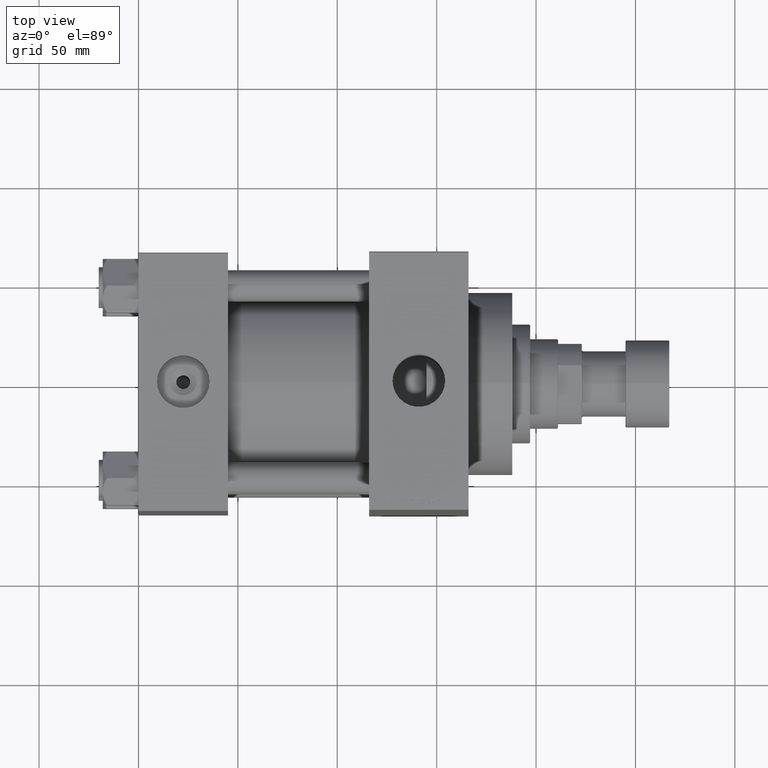
[diagram: clean part render]
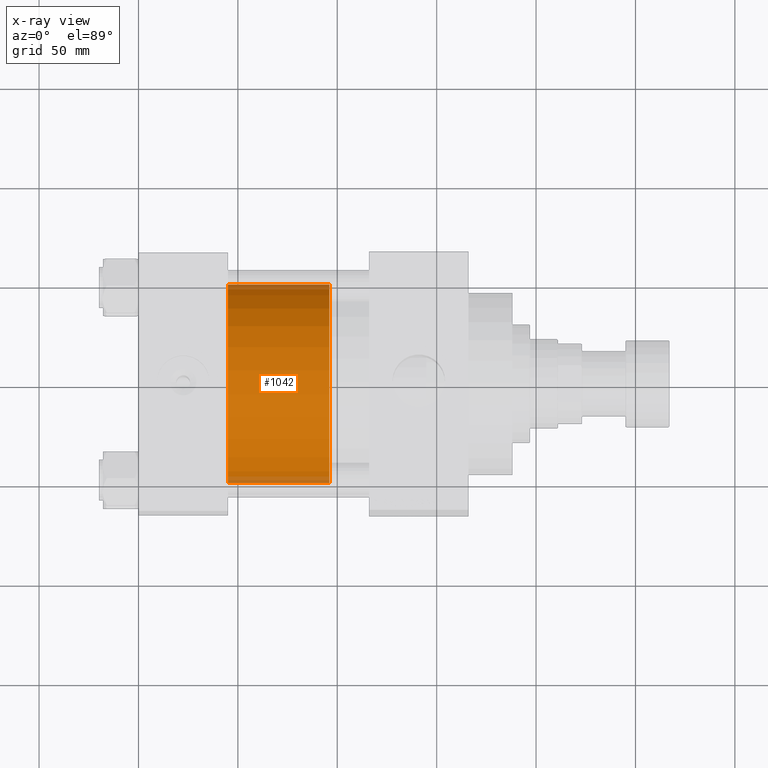
[diagram: x-ray — body ghosted, one internal face saturated and labeled with its STEP entity id]
A machine part, top view, then the same camera in x-ray: the body is ghosted and one INTERNAL B-rep face — a face not visible from any outside direction — is saturated and labeled: STEP entity #1042.
In plain terms, the highlighted cylindrical surface (partial cylindrical patch) has radius 50 mm, axis along (-1, 0, 0).
Its self-contained STEP definition (entity closure, byte-faithful):
#772 = LINE ( 'NONE', #20398, #4152 ) ;
#783 = DIRECTION ( 'NONE',  ( 1.000000000000000000, 0.000000000000000000, 0.000000000000000000 ) ) ;
#1042 = ADVANCED_FACE ( 'NONE', ( #16111 ), #22696, .T. ) ;
#3560 = CARTESIAN_POINT ( 'NONE',  ( 50.00000000000000000, 6.123233995736766085E-15, 51.00000000000000000 ) ) ;
#4038 = VERTEX_POINT ( 'NONE', #3560 ) ;
#4152 = VECTOR ( 'NONE', #46411, 1000.000000000000000 ) ;
#5279 = CARTESIAN_POINT ( 'NONE',  ( -50.00000000000000000, 0.000000000000000000, 51.00000000000000000 ) ) ;
#6223 = CARTESIAN_POINT ( 'NONE',  ( 50.00000000000000000, 6.123233995736766085E-15, 0.000000000000000000 ) ) ;
#9599 = EDGE_LOOP ( 'NONE', ( #34657, #38154, #11329, #18922 ) ) ;
#11306 = DIRECTION ( 'NONE',  ( 1.000000000000000000, 0.000000000000000000, 0.000000000000000000 ) ) ;
#11329 = ORIENTED_EDGE ( 'NONE', *, *, #33602, .T. ) ;
#12204 = CARTESIAN_POINT ( 'NONE',  ( 0.000000000000000000, 0.000000000000000000, 0.000000000000000000 ) ) ;
#12817 = DIRECTION ( 'NONE',  ( -0.000000000000000000, -0.000000000000000000, -1.000000000000000000 ) ) ;
#15081 = AXIS2_PLACEMENT_3D ( 'NONE', #19084, #44374, #11306 ) ;
#15389 = VERTEX_POINT ( 'NONE', #6223 ) ;
#15634 = DIRECTION ( 'NONE',  ( -0.000000000000000000, -0.000000000000000000, -1.000000000000000000 ) ) ;
#15928 = EDGE_CURVE ( 'NONE', #30147, #15389, #39552, .T. ) ;
#16111 = FACE_OUTER_BOUND ( 'NONE', #9599, .T. ) ;
#18922 = ORIENTED_EDGE ( 'NONE', *, *, #15928, .T. ) ;
#19084 = CARTESIAN_POINT ( 'NONE',  ( 0.000000000000000000, 0.000000000000000000, 51.00000000000000000 ) ) ;
#20398 = CARTESIAN_POINT ( 'NONE',  ( 50.00000000000000000, 6.123233995736766085E-15, 51.00000000000000000 ) ) ;
#22696 = CYLINDRICAL_SURFACE ( 'NONE', #31822, 50.00000000000000000 ) ;
#27554 = CARTESIAN_POINT ( 'NONE',  ( -50.00000000000000000, 0.000000000000000000, 0.000000000000000000 ) ) ;
#29713 = EDGE_CURVE ( 'NONE', #4038, #15389, #772, .T. ) ;
#29974 = DIRECTION ( 'NONE',  ( -1.000000000000000000, 0.000000000000000000, 0.000000000000000000 ) ) ;
#30147 = VERTEX_POINT ( 'NONE', #27554 ) ;
#31122 = CARTESIAN_POINT ( 'NONE',  ( -50.00000000000000000, 0.000000000000000000, 51.00000000000000000 ) ) ;
#31822 = AXIS2_PLACEMENT_3D ( 'NONE', #33863, #15634, #29974 ) ;
#33602 = EDGE_CURVE ( 'NONE', #42469, #30147, #46132, .T. ) ;
#33863 = CARTESIAN_POINT ( 'NONE',  ( 0.000000000000000000, 0.000000000000000000, 51.00000000000000000 ) ) ;
#34553 = DIRECTION ( 'NONE',  ( 0.000000000000000000, 0.000000000000000000, 1.000000000000000000 ) ) ;
#34657 = ORIENTED_EDGE ( 'NONE', *, *, #29713, .F. ) ;
#38154 = ORIENTED_EDGE ( 'NONE', *, *, #43734, .F. ) ;
#38758 = AXIS2_PLACEMENT_3D ( 'NONE', #12204, #34553, #783 ) ;
#39552 = CIRCLE ( 'NONE', #38758, 50.00000000000000000 ) ;
#42280 = CIRCLE ( 'NONE', #15081, 50.00000000000000000 ) ;
#42469 = VERTEX_POINT ( 'NONE', #31122 ) ;
#43734 = EDGE_CURVE ( 'NONE', #42469, #4038, #42280, .T. ) ;
#44374 = DIRECTION ( 'NONE',  ( 0.000000000000000000, 0.000000000000000000, 1.000000000000000000 ) ) ;
#44384 = VECTOR ( 'NONE', #12817, 1000.000000000000000 ) ;
#46132 = LINE ( 'NONE', #5279, #44384 ) ;
#46411 = DIRECTION ( 'NONE',  ( -0.000000000000000000, -0.000000000000000000, -1.000000000000000000 ) ) ;